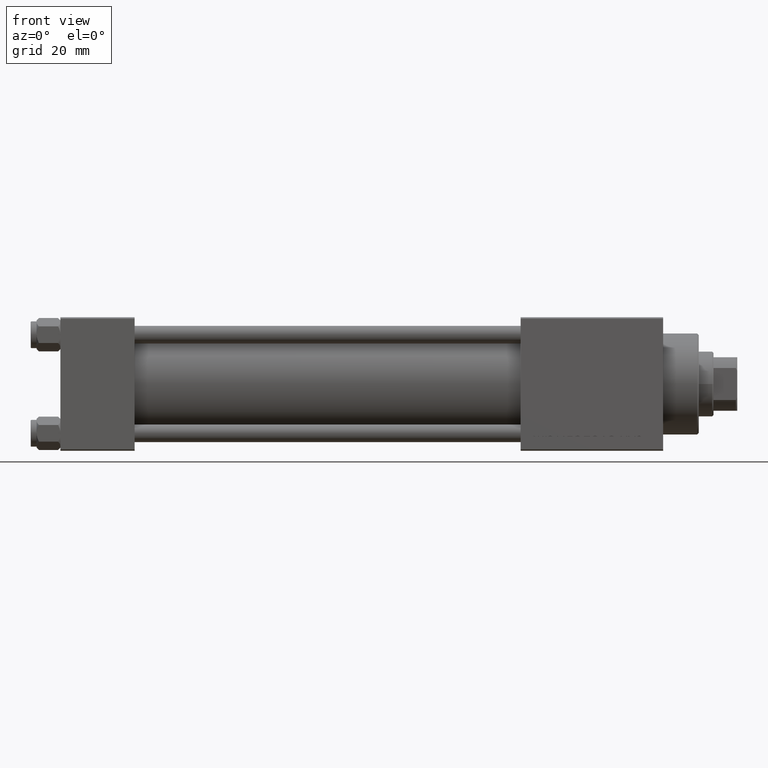
[diagram: clean part render]
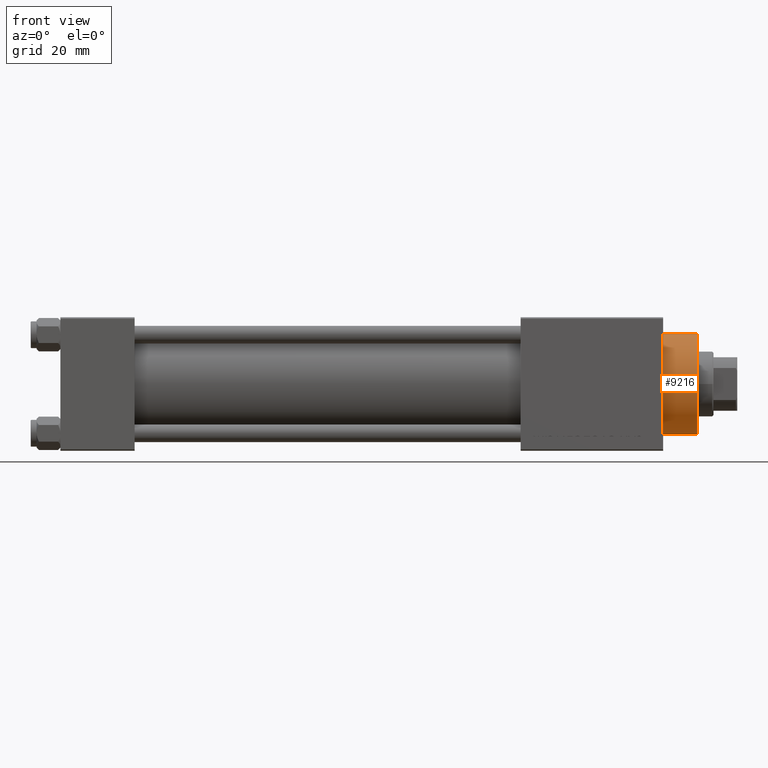
[diagram: same view with one face highlighted and labeled with its STEP entity id]
A machine part, front view. The second image highlights one B-rep face of the part: STEP entity #9216.
In plain terms, the highlighted cylindrical surface (partial cylindrical patch) has radius 17 mm, axis along (-1, -0, -0).
Its self-contained STEP definition (entity closure, byte-faithful):
#787 = DIRECTION ( 'NONE',  ( -1.000000000000000000, 0.000000000000000000, 0.000000000000000000 ) ) ;
#1035 = CYLINDRICAL_SURFACE ( 'NONE', #19800, 17.00000000000000000 ) ;
#1917 = ORIENTED_EDGE ( 'NONE', *, *, #4387, .F. ) ;
#3003 = CARTESIAN_POINT ( 'NONE',  ( -17.00000000000000000, 0.000000000000000000, 40.19999999999999574 ) ) ;
#4011 = AXIS2_PLACEMENT_3D ( 'NONE', #6016, #48283, #21535 ) ;
#4387 = EDGE_CURVE ( 'NONE', #5497, #24600, #27590, .T. ) ;
#4912 = CARTESIAN_POINT ( 'NONE',  ( -17.00000000000000000, 0.000000000000000000, 40.70000000000000284 ) ) ;
#5077 = EDGE_CURVE ( 'NONE', #49708, #28447, #39777, .T. ) ;
#5497 = VERTEX_POINT ( 'NONE', #15515 ) ;
#6016 = CARTESIAN_POINT ( 'NONE',  ( 0.000000000000000000, 0.000000000000000000, 40.19999999999999574 ) ) ;
#8418 = FACE_OUTER_BOUND ( 'NONE', #25725, .T. ) ;
#9160 = ORIENTED_EDGE ( 'NONE', *, *, #5077, .T. ) ;
#9216 = ADVANCED_FACE ( 'NONE', ( #8418 ), #1035, .T. ) ;
#15515 = CARTESIAN_POINT ( 'NONE',  ( 17.00000000000000000, 2.081899558550500280E-15, 40.19999999999999574 ) ) ;
#16753 = CARTESIAN_POINT ( 'NONE',  ( 0.000000000000000000, 0.000000000000000000, 28.69999999999999929 ) ) ;
#17075 = AXIS2_PLACEMENT_3D ( 'NONE', #16753, #24372, #27689 ) ;
#19800 = AXIS2_PLACEMENT_3D ( 'NONE', #23935, #47607, #787 ) ;
#21535 = DIRECTION ( 'NONE',  ( 1.000000000000000000, 0.000000000000000000, 0.000000000000000000 ) ) ;
#23767 = DIRECTION ( 'NONE',  ( -0.000000000000000000, -0.000000000000000000, -1.000000000000000000 ) ) ;
#23935 = CARTESIAN_POINT ( 'NONE',  ( 0.000000000000000000, 0.000000000000000000, 40.70000000000000284 ) ) ;
#24372 = DIRECTION ( 'NONE',  ( 0.000000000000000000, 0.000000000000000000, 1.000000000000000000 ) ) ;
#24521 = VECTOR ( 'NONE', #29065, 1000.000000000000000 ) ;
#24600 = VERTEX_POINT ( 'NONE', #37474 ) ;
#25725 = EDGE_LOOP ( 'NONE', ( #1917, #31520, #9160, #30154 ) ) ;
#27590 = LINE ( 'NONE', #47438, #45625 ) ;
#27689 = DIRECTION ( 'NONE',  ( 1.000000000000000000, 0.000000000000000000, 0.000000000000000000 ) ) ;
#28447 = VERTEX_POINT ( 'NONE', #33640 ) ;
#29065 = DIRECTION ( 'NONE',  ( -0.000000000000000000, -0.000000000000000000, -1.000000000000000000 ) ) ;
#30154 = ORIENTED_EDGE ( 'NONE', *, *, #35058, .T. ) ;
#31520 = ORIENTED_EDGE ( 'NONE', *, *, #34136, .T. ) ;
#33640 = CARTESIAN_POINT ( 'NONE',  ( -17.00000000000000000, 0.000000000000000000, 28.69999999999999929 ) ) ;
#34136 = EDGE_CURVE ( 'NONE', #5497, #49708, #36494, .T. ) ;
#35058 = EDGE_CURVE ( 'NONE', #28447, #24600, #49534, .T. ) ;
#36494 = CIRCLE ( 'NONE', #4011, 17.00000000000000000 ) ;
#37474 = CARTESIAN_POINT ( 'NONE',  ( 17.00000000000000000, 2.081899558550500280E-15, 28.69999999999999929 ) ) ;
#39777 = LINE ( 'NONE', #4912, #24521 ) ;
#45625 = VECTOR ( 'NONE', #23767, 1000.000000000000000 ) ;
#47438 = CARTESIAN_POINT ( 'NONE',  ( 17.00000000000000000, 2.081899558550500280E-15, 40.70000000000000284 ) ) ;
#47607 = DIRECTION ( 'NONE',  ( -0.000000000000000000, -0.000000000000000000, -1.000000000000000000 ) ) ;
#48283 = DIRECTION ( 'NONE',  ( 0.000000000000000000, 0.000000000000000000, -1.000000000000000000 ) ) ;
#49534 = CIRCLE ( 'NONE', #17075, 17.00000000000000000 ) ;
#49708 = VERTEX_POINT ( 'NONE', #3003 ) ;